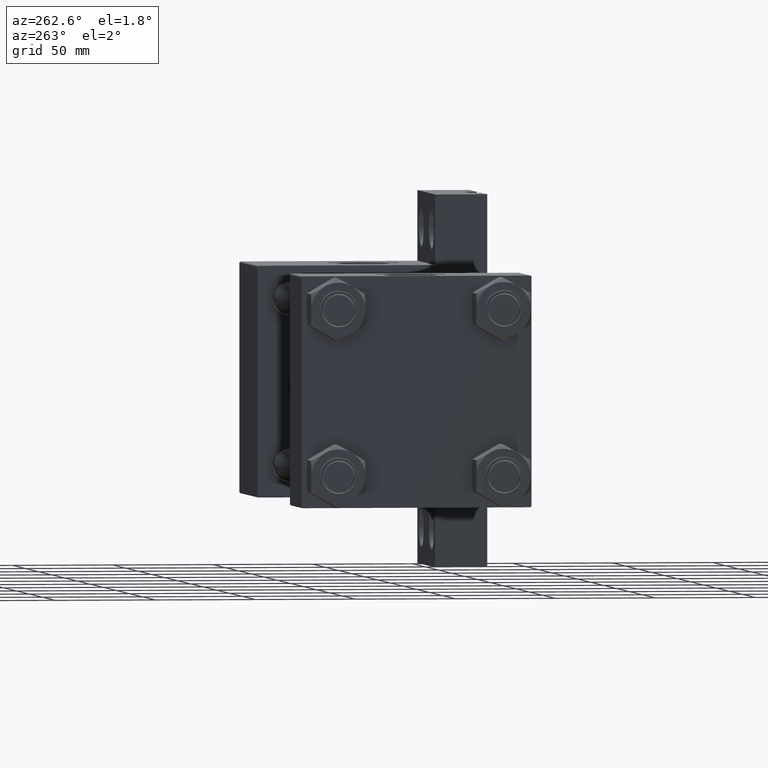
[diagram: clean part render]
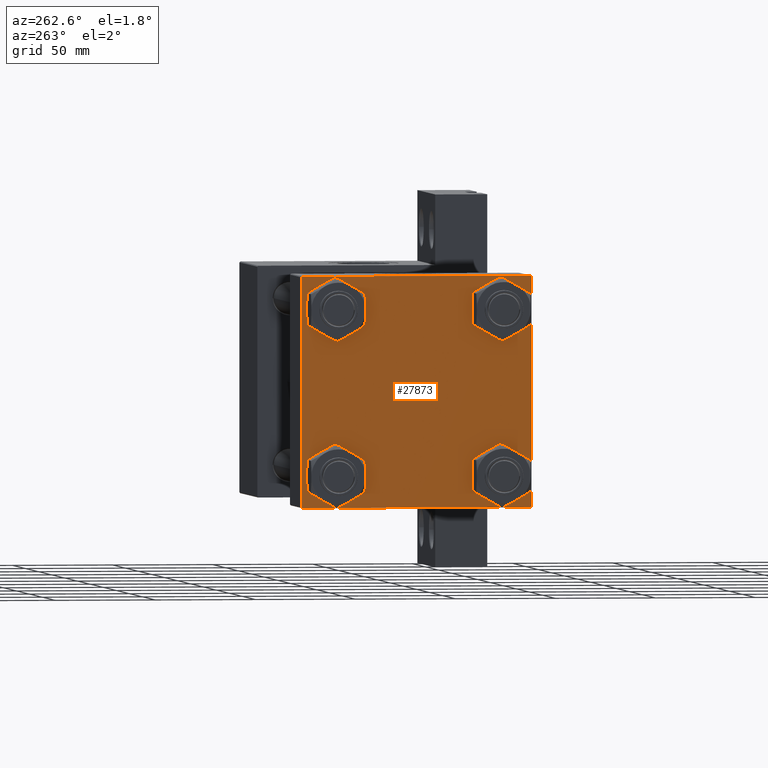
[diagram: same view with one face highlighted and labeled with its STEP entity id]
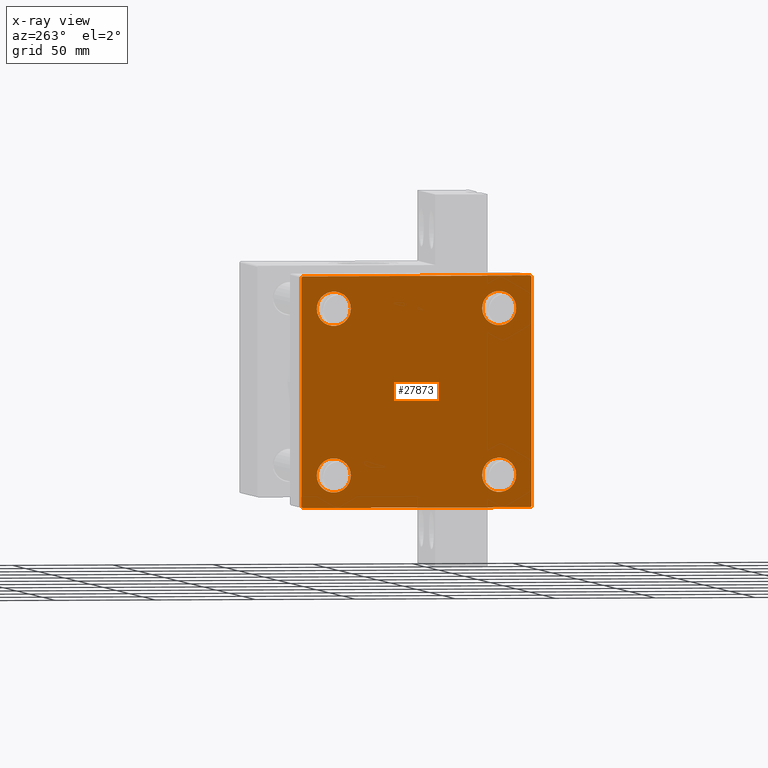
[diagram: x-ray of the same camera — body ghosted, the highlighted face saturated]
A machine part, auxiliary view. The second image highlights one B-rep face of the part: STEP entity #27873.
The next image is the same camera in x-ray: the body ghosted, the highlighted face saturated — about 0% of this face is hidden behind the body in this view.
In plain terms, the highlighted planar face has unit normal (-1, 0, -0).
Its self-contained STEP definition (entity closure, byte-faithful):
#63 = VECTOR ( 'NONE', #823, 1000.000000000000114 ) ;
#82 = CARTESIAN_POINT ( 'NONE',  ( 0.000000000000000000, 57.00000000000002132, -57.49999999999999289 ) ) ;
#507 = ORIENTED_EDGE ( 'NONE', *, *, #14751, .T. ) ;
#823 = DIRECTION ( 'NONE',  ( 0.000000000000000000, -0.7071067811865474617, 0.7071067811865474617 ) ) ;
#1061 = AXIS2_PLACEMENT_3D ( 'NONE', #44572, #25382, #11246 ) ;
#1731 = EDGE_CURVE ( 'NONE', #44571, #37494, #22319, .T. ) ;
#2025 = EDGE_CURVE ( 'NONE', #47937, #27871, #29990, .T. ) ;
#3325 = VERTEX_POINT ( 'NONE', #82 ) ;
#3610 = CARTESIAN_POINT ( 'NONE',  ( 0.000000000000000000, -41.34999999999998721, 41.35000000000000853 ) ) ;
#3710 = CARTESIAN_POINT ( 'NONE',  ( 0.000000000000000000, 57.49999999999999289, 57.50000000000000711 ) ) ;
#3825 = DIRECTION ( 'NONE',  ( -0.000000000000000000, 0.7071067811865376918, 0.7071067811865573427 ) ) ;
#3953 = VERTEX_POINT ( 'NONE', #26012 ) ;
#4765 = VECTOR ( 'NONE', #27543, 1000.000000000000114 ) ;
#4802 = VERTEX_POINT ( 'NONE', #37921 ) ;
#4890 = VERTEX_POINT ( 'NONE', #31602 ) ;
#4922 = CARTESIAN_POINT ( 'NONE',  ( 0.000000000000000000, 41.34999999999999432, -41.35000000000000142 ) ) ;
#5972 = VERTEX_POINT ( 'NONE', #11250 ) ;
#6610 = DIRECTION ( 'NONE',  ( 0.000000000000000000, 0.000000000000000000, 1.000000000000000000 ) ) ;
#7366 = FACE_BOUND ( 'NONE', #45626, .T. ) ;
#8044 = CARTESIAN_POINT ( 'NONE',  ( 0.000000000000000000, 41.34999999999999432, -41.35000000000000142 ) ) ;
#8291 = ORIENTED_EDGE ( 'NONE', *, *, #23958, .T. ) ;
#8587 = CARTESIAN_POINT ( 'NONE',  ( 0.000000000000000000, -41.34999999999998721, -32.85000000000001563 ) ) ;
#8970 = CARTESIAN_POINT ( 'NONE',  ( 0.000000000000000000, 57.00000000000000711, 57.50000000000000711 ) ) ;
#9376 = AXIS2_PLACEMENT_3D ( 'NONE', #44741, #25304, #41097 ) ;
#9441 = DIRECTION ( 'NONE',  ( 0.000000000000000000, 0.000000000000000000, 1.000000000000000000 ) ) ;
#10525 = FACE_OUTER_BOUND ( 'NONE', #23177, .T. ) ;
#11086 = EDGE_CURVE ( 'NONE', #19054, #4890, #35617, .T. ) ;
#11246 = DIRECTION ( 'NONE',  ( -0.000000000000000000, 0.000000000000000000, 1.000000000000000000 ) ) ;
#11250 = CARTESIAN_POINT ( 'NONE',  ( 0.000000000000000000, -41.34999999999998721, -49.85000000000000853 ) ) ;
#11277 = ORIENTED_EDGE ( 'NONE', *, *, #33855, .T. ) ;
#11442 = ORIENTED_EDGE ( 'NONE', *, *, #22584, .T. ) ;
#11500 = VERTEX_POINT ( 'NONE', #20861 ) ;
#12443 = LINE ( 'NONE', #22743, #4765 ) ;
#12556 = AXIS2_PLACEMENT_3D ( 'NONE', #14537, #47614, #18906 ) ;
#12682 = CARTESIAN_POINT ( 'NONE',  ( 0.000000000000000000, -41.34999999999998721, -41.35000000000000853 ) ) ;
#13132 = CARTESIAN_POINT ( 'NONE',  ( 0.000000000000000000, 57.49999999999999289, -57.49999999999999289 ) ) ;
#13432 = CARTESIAN_POINT ( 'NONE',  ( 0.000000000000000000, -41.34999999999998721, -41.35000000000000853 ) ) ;
#13569 = VECTOR ( 'NONE', #18560, 1000.000000000000000 ) ;
#14387 = DIRECTION ( 'NONE',  ( 1.000000000000000000, -0.000000000000000000, 0.000000000000000000 ) ) ;
#14537 = CARTESIAN_POINT ( 'NONE',  ( 0.000000000000000000, 41.34999999999999432, 41.35000000000000142 ) ) ;
#14632 = ORIENTED_EDGE ( 'NONE', *, *, #38587, .T. ) ;
#14751 = EDGE_CURVE ( 'NONE', #11500, #3953, #24071, .T. ) ;
#14909 = FACE_BOUND ( 'NONE', #41888, .T. ) ;
#15111 = ORIENTED_EDGE ( 'NONE', *, *, #1731, .T. ) ;
#15721 = CARTESIAN_POINT ( 'NONE',  ( 0.000000000000000000, -57.50000000000000711, 57.00000000000000711 ) ) ;
#16223 = ORIENTED_EDGE ( 'NONE', *, *, #17841, .T. ) ;
#16337 = AXIS2_PLACEMENT_3D ( 'NONE', #3610, #37892, #41532 ) ;
#16429 = CIRCLE ( 'NONE', #43597, 8.499999999999992895 ) ;
#17073 = EDGE_CURVE ( 'NONE', #3953, #11500, #19480, .T. ) ;
#17232 = CARTESIAN_POINT ( 'NONE',  ( 0.000000000000000000, 41.34999999999999432, 41.35000000000000142 ) ) ;
#17841 = EDGE_CURVE ( 'NONE', #42102, #4802, #19322, .T. ) ;
#18083 = FACE_BOUND ( 'NONE', #28029, .T. ) ;
#18200 = VECTOR ( 'NONE', #26581, 1000.000000000000000 ) ;
#18286 = CARTESIAN_POINT ( 'NONE',  ( 0.000000000000000000, 41.34999999999999432, 32.85000000000000853 ) ) ;
#18560 = DIRECTION ( 'NONE',  ( 0.000000000000000000, -1.000000000000000000, -1.206764157201257045E-16 ) ) ;
#18906 = DIRECTION ( 'NONE',  ( 0.000000000000000000, 0.000000000000000000, 1.000000000000000000 ) ) ;
#19054 = VERTEX_POINT ( 'NONE', #33549 ) ;
#19230 = CARTESIAN_POINT ( 'NONE',  ( 0.000000000000000000, -57.00000000000003553, 57.49999999999999289 ) ) ;
#19322 = LINE ( 'NONE', #37813, #63 ) ;
#19480 = CIRCLE ( 'NONE', #9376, 8.499999999999992895 ) ;
#19500 = LINE ( 'NONE', #3710, #13569 ) ;
#19755 = LINE ( 'NONE', #34595, #18200 ) ;
#19765 = CARTESIAN_POINT ( 'NONE',  ( 0.000000000000000000, 57.49999999999999289, 57.00000000000003553 ) ) ;
#20076 = ORIENTED_EDGE ( 'NONE', *, *, #30582, .T. ) ;
#20375 = VERTEX_POINT ( 'NONE', #25957 ) ;
#20861 = CARTESIAN_POINT ( 'NONE',  ( 0.000000000000000000, -41.34999999999998721, 49.85000000000000853 ) ) ;
#21448 = ORIENTED_EDGE ( 'NONE', *, *, #33152, .T. ) ;
#22319 = LINE ( 'NONE', #40808, #32932 ) ;
#22584 = EDGE_CURVE ( 'NONE', #4890, #19054, #38961, .T. ) ;
#22743 = CARTESIAN_POINT ( 'NONE',  ( 0.000000000000000000, 57.25000000000081712, -57.24999999999922551 ) ) ;
#23177 = EDGE_LOOP ( 'NONE', ( #30704, #11277, #28782, #16223, #43806, #15111, #40668, #20076 ) ) ;
#23958 = EDGE_CURVE ( 'NONE', #20375, #26793, #39002, .T. ) ;
#24071 = CIRCLE ( 'NONE', #16337, 8.499999999999992895 ) ;
#24206 = AXIS2_PLACEMENT_3D ( 'NONE', #8044, #14387, #44298 ) ;
#24238 = AXIS2_PLACEMENT_3D ( 'NONE', #17232, #42995, #9441 ) ;
#25304 = DIRECTION ( 'NONE',  ( 1.000000000000000000, -0.000000000000000000, 0.000000000000000000 ) ) ;
#25382 = DIRECTION ( 'NONE',  ( -1.000000000000000000, 0.000000000000000000, -0.000000000000000000 ) ) ;
#25408 = ORIENTED_EDGE ( 'NONE', *, *, #31343, .T. ) ;
#25755 = LINE ( 'NONE', #33538, #40887 ) ;
#25957 = CARTESIAN_POINT ( 'NONE',  ( 0.000000000000000000, 41.34999999999999432, 49.85000000000000142 ) ) ;
#26012 = CARTESIAN_POINT ( 'NONE',  ( 0.000000000000000000, -41.34999999999998721, 32.85000000000001563 ) ) ;
#26571 = CIRCLE ( 'NONE', #12556, 8.499999999999992895 ) ;
#26581 = DIRECTION ( 'NONE',  ( 0.000000000000000000, 0.000000000000000000, -1.000000000000000000 ) ) ;
#26793 = VERTEX_POINT ( 'NONE', #18286 ) ;
#27083 = DIRECTION ( 'NONE',  ( 0.000000000000000000, 0.000000000000000000, 1.000000000000000000 ) ) ;
#27532 = DIRECTION ( 'NONE',  ( 0.000000000000000000, 0.000000000000000000, 1.000000000000000000 ) ) ;
#27543 = DIRECTION ( 'NONE',  ( -0.000000000000000000, -0.7071067811865376918, -0.7071067811865573427 ) ) ;
#27871 = VERTEX_POINT ( 'NONE', #33637 ) ;
#27873 = ADVANCED_FACE ( 'NONE', ( #44335, #7366, #18083, #14909, #10525 ), #29751, .T. ) ;
#27934 = EDGE_CURVE ( 'NONE', #44571, #4802, #19755, .T. ) ;
#28029 = EDGE_LOOP ( 'NONE', ( #43431, #11442 ) ) ;
#28525 = DIRECTION ( 'NONE',  ( 1.000000000000000000, -0.000000000000000000, 0.000000000000000000 ) ) ;
#28782 = ORIENTED_EDGE ( 'NONE', *, *, #30404, .T. ) ;
#29033 = CIRCLE ( 'NONE', #43775, 8.499999999999992895 ) ;
#29501 = DIRECTION ( 'NONE',  ( 0.000000000000000000, 0.000000000000000000, -1.000000000000000000 ) ) ;
#29751 = PLANE ( 'NONE',  #1061 ) ;
#29990 = LINE ( 'NONE', #44814, #37622 ) ;
#30404 = EDGE_CURVE ( 'NONE', #3325, #42102, #46473, .T. ) ;
#30495 = DIRECTION ( 'NONE',  ( 1.000000000000000000, -0.000000000000000000, 0.000000000000000000 ) ) ;
#30582 = EDGE_CURVE ( 'NONE', #32438, #47937, #25755, .T. ) ;
#30704 = ORIENTED_EDGE ( 'NONE', *, *, #2025, .T. ) ;
#31190 = CARTESIAN_POINT ( 'NONE',  ( 0.000000000000000000, -57.00000000000000711, -57.50000000000000711 ) ) ;
#31343 = EDGE_CURVE ( 'NONE', #26793, #20375, #26571, .T. ) ;
#31425 = DIRECTION ( 'NONE',  ( 1.000000000000000000, -0.000000000000000000, 0.000000000000000000 ) ) ;
#31602 = CARTESIAN_POINT ( 'NONE',  ( 0.000000000000000000, 41.34999999999999432, -49.85000000000000142 ) ) ;
#32438 = VERTEX_POINT ( 'NONE', #8970 ) ;
#32932 = VECTOR ( 'NONE', #3825, 1000.000000000000114 ) ;
#33152 = EDGE_CURVE ( 'NONE', #5972, #44018, #16429, .T. ) ;
#33538 = CARTESIAN_POINT ( 'NONE',  ( 0.000000000000000000, 57.24999999999922551, 57.25000000000081712 ) ) ;
#33549 = CARTESIAN_POINT ( 'NONE',  ( 0.000000000000000000, 41.34999999999999432, -32.85000000000000853 ) ) ;
#33637 = CARTESIAN_POINT ( 'NONE',  ( 0.000000000000000000, 57.49999999999999289, -57.00000000000000711 ) ) ;
#33855 = EDGE_CURVE ( 'NONE', #27871, #3325, #12443, .T. ) ;
#34595 = CARTESIAN_POINT ( 'NONE',  ( 0.000000000000000000, -57.50000000000000711, 57.49999999999999289 ) ) ;
#35617 = CIRCLE ( 'NONE', #41805, 8.499999999999992895 ) ;
#35759 = DIRECTION ( 'NONE',  ( 0.000000000000000000, -1.000000000000000000, -1.206764157201257045E-16 ) ) ;
#37494 = VERTEX_POINT ( 'NONE', #19230 ) ;
#37622 = VECTOR ( 'NONE', #29501, 1000.000000000000000 ) ;
#37813 = CARTESIAN_POINT ( 'NONE',  ( 0.000000000000000000, -57.25000000000000711, -57.25000000000000711 ) ) ;
#37892 = DIRECTION ( 'NONE',  ( 1.000000000000000000, -0.000000000000000000, 0.000000000000000000 ) ) ;
#37921 = CARTESIAN_POINT ( 'NONE',  ( 0.000000000000000000, -57.50000000000000711, -57.00000000000000711 ) ) ;
#38004 = EDGE_LOOP ( 'NONE', ( #507, #46364 ) ) ;
#38587 = EDGE_CURVE ( 'NONE', #44018, #5972, #29033, .T. ) ;
#38961 = CIRCLE ( 'NONE', #24206, 8.499999999999992895 ) ;
#39002 = CIRCLE ( 'NONE', #24238, 8.499999999999992895 ) ;
#40365 = DIRECTION ( 'NONE',  ( 0.000000000000000000, 0.7071067811865573427, -0.7071067811865376918 ) ) ;
#40668 = ORIENTED_EDGE ( 'NONE', *, *, #41188, .F. ) ;
#40808 = CARTESIAN_POINT ( 'NONE',  ( -0.000000000000000000, -57.25000000000081712, 57.24999999999922551 ) ) ;
#40887 = VECTOR ( 'NONE', #40365, 1000.000000000000114 ) ;
#41097 = DIRECTION ( 'NONE',  ( 0.000000000000000000, 0.000000000000000000, 1.000000000000000000 ) ) ;
#41188 = EDGE_CURVE ( 'NONE', #32438, #37494, #19500, .T. ) ;
#41532 = DIRECTION ( 'NONE',  ( 0.000000000000000000, 0.000000000000000000, 1.000000000000000000 ) ) ;
#41640 = VECTOR ( 'NONE', #35759, 1000.000000000000000 ) ;
#41805 = AXIS2_PLACEMENT_3D ( 'NONE', #4922, #30495, #27083 ) ;
#41888 = EDGE_LOOP ( 'NONE', ( #8291, #25408 ) ) ;
#42102 = VERTEX_POINT ( 'NONE', #31190 ) ;
#42995 = DIRECTION ( 'NONE',  ( 1.000000000000000000, -0.000000000000000000, 0.000000000000000000 ) ) ;
#43431 = ORIENTED_EDGE ( 'NONE', *, *, #11086, .T. ) ;
#43597 = AXIS2_PLACEMENT_3D ( 'NONE', #12682, #31425, #27532 ) ;
#43775 = AXIS2_PLACEMENT_3D ( 'NONE', #13432, #28525, #6610 ) ;
#43806 = ORIENTED_EDGE ( 'NONE', *, *, #27934, .F. ) ;
#44018 = VERTEX_POINT ( 'NONE', #8587 ) ;
#44298 = DIRECTION ( 'NONE',  ( 0.000000000000000000, 0.000000000000000000, 1.000000000000000000 ) ) ;
#44335 = FACE_BOUND ( 'NONE', #38004, .T. ) ;
#44571 = VERTEX_POINT ( 'NONE', #15721 ) ;
#44572 = CARTESIAN_POINT ( 'NONE',  ( 0.000000000000000000, 0.000000000000000000, 0.000000000000000000 ) ) ;
#44741 = CARTESIAN_POINT ( 'NONE',  ( 0.000000000000000000, -41.34999999999998721, 41.35000000000000853 ) ) ;
#44814 = CARTESIAN_POINT ( 'NONE',  ( 0.000000000000000000, 57.49999999999999289, 57.50000000000000711 ) ) ;
#45626 = EDGE_LOOP ( 'NONE', ( #14632, #21448 ) ) ;
#46364 = ORIENTED_EDGE ( 'NONE', *, *, #17073, .T. ) ;
#46473 = LINE ( 'NONE', #13132, #41640 ) ;
#47614 = DIRECTION ( 'NONE',  ( 1.000000000000000000, -0.000000000000000000, 0.000000000000000000 ) ) ;
#47937 = VERTEX_POINT ( 'NONE', #19765 ) ;